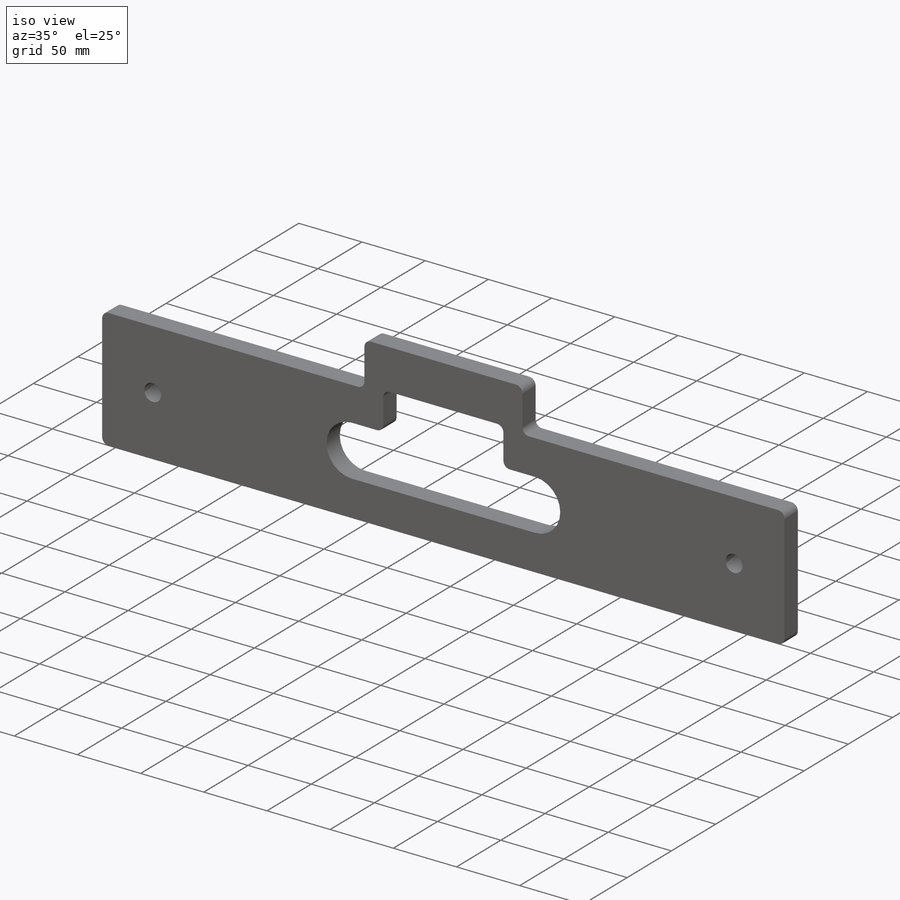
[diagram: iso view]
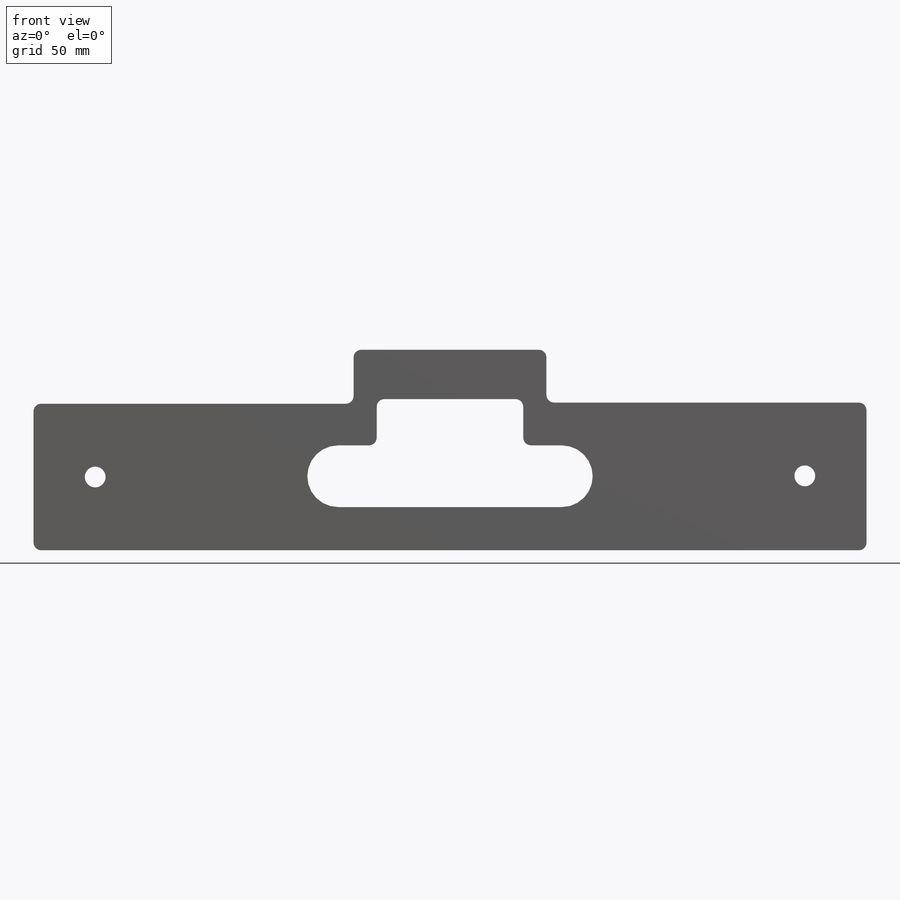
[diagram: front view]
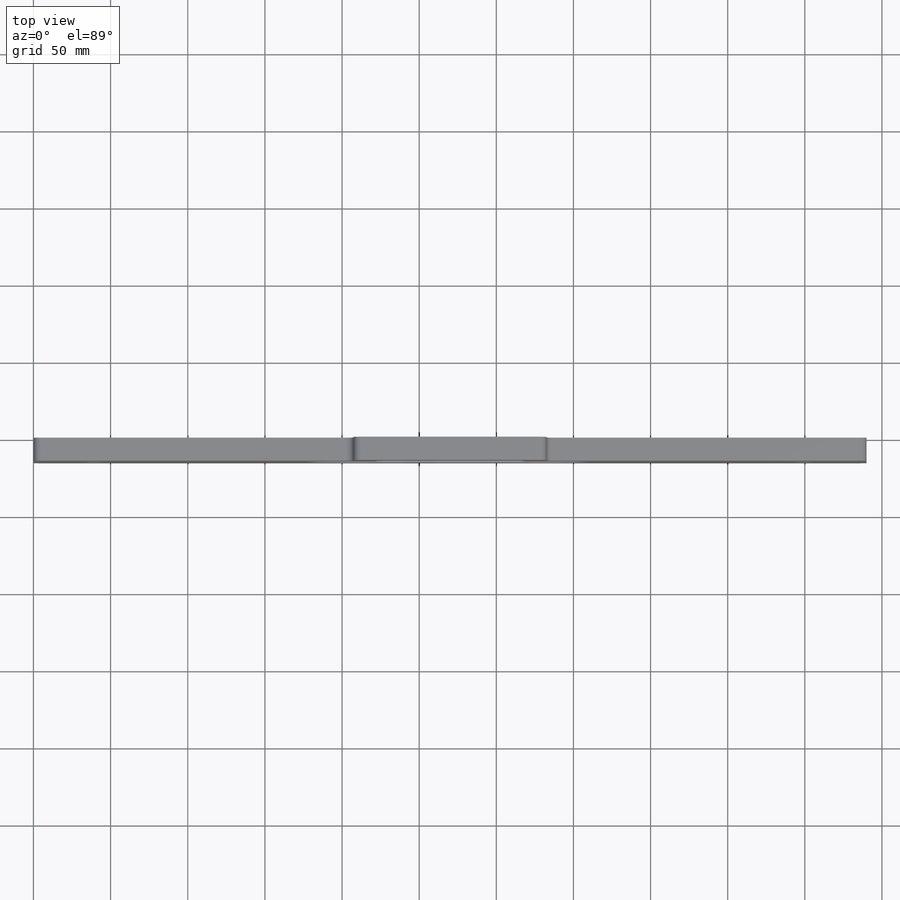
[diagram: top view]
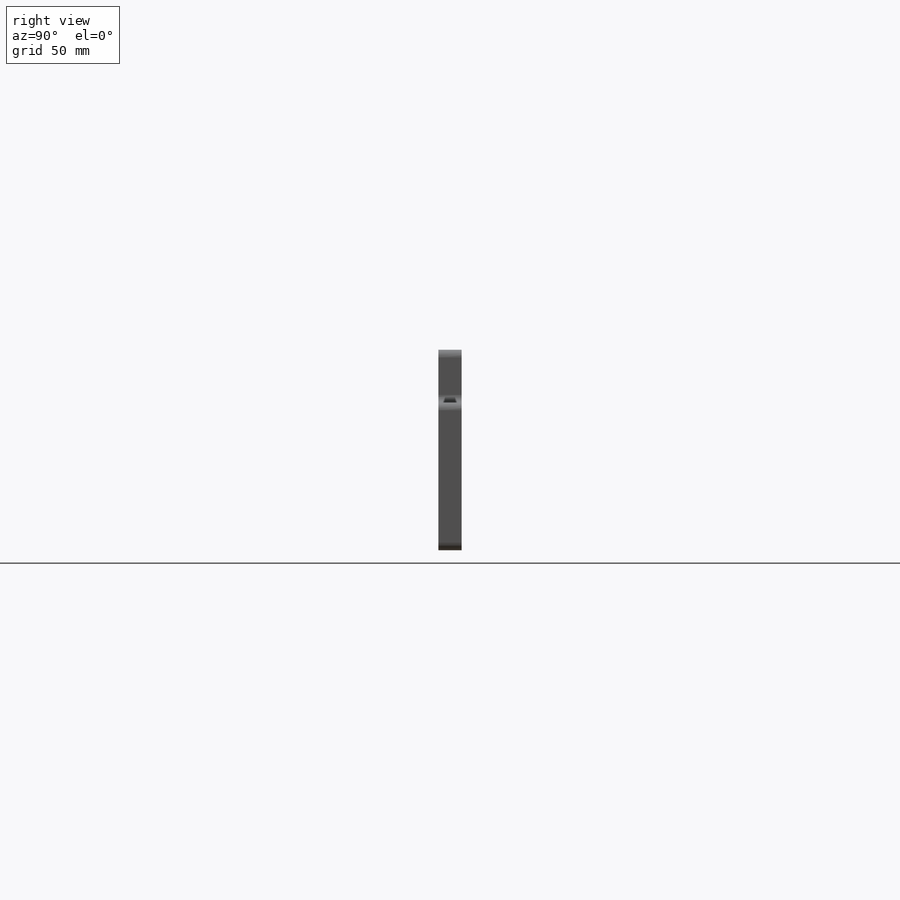
[diagram: right view]
SOLIDWORKS PART (.sldprt)
format: sldprt  version: not decoded by parser v0  size: 262,144 bytes
history: native  units: mm
features: sketch x4, plane x3, fillet x3, material x1, extrude x1, hole x1, cut_extrude x1 (+10 scaffold rows collapsed)
feature tree (24):
  scaffold x10  (default folders/planes/origin — collapsed)
  material  "Matériau <non spécifié>"
  plane  "Plan de face"
  plane  "Plan de dessus"
  plane  "Plan de droite"
  sketch  "Esquisse1"  dims[D1=540.0mm D2=95.0mm D3=125.0mm D4=207.5mm D5=130.0mm]
  extrude  "Boss.-Extru.1"  Depth=15mm
  hole  "Dégagement M121"  Diameter=13.5mm Depth=15mm
  sketch  "Esquisse19"  dims[D1=40.0mm D2=40.0mm D3=47.5mm D4=47.5mm]
  sketch  "Esquisse18"  dims[hole-wizard template sketch: 59 standard entries collapsed; hole parameters kept: c18.Diamètre du perçage jusqu'au prochain=13.5mm c18.Profondeur du perçage jusqu'au prochain=15.0mm]
  sketch  "Esquisse20"  dims[c1.D1=20.0mm c1.D2=20.0mm c1.D6=20.0mm c1.D7=20.0mm c1.D3=70.0mm c1.D4=95.0mm c1.D5=28.0mm c2.D6=145.0mm c2.D7=197.5mm c2.D8=222.5mm]
  cut_extrude  "Enlèv. mat.-Extru.8"  Depth=33mm
  fillet  "Congé1"  Radius=5mm
  fillet  "Congé2"  Radius=5mm
  fillet  "Congé3"  Radius=5mm
decode coverage: 10 of 10 modeling features carry decoded parameters
note: ~ marks probable driven/reference dimensions
note: suppression state not decoded; provenance and decode notes live in map.json
